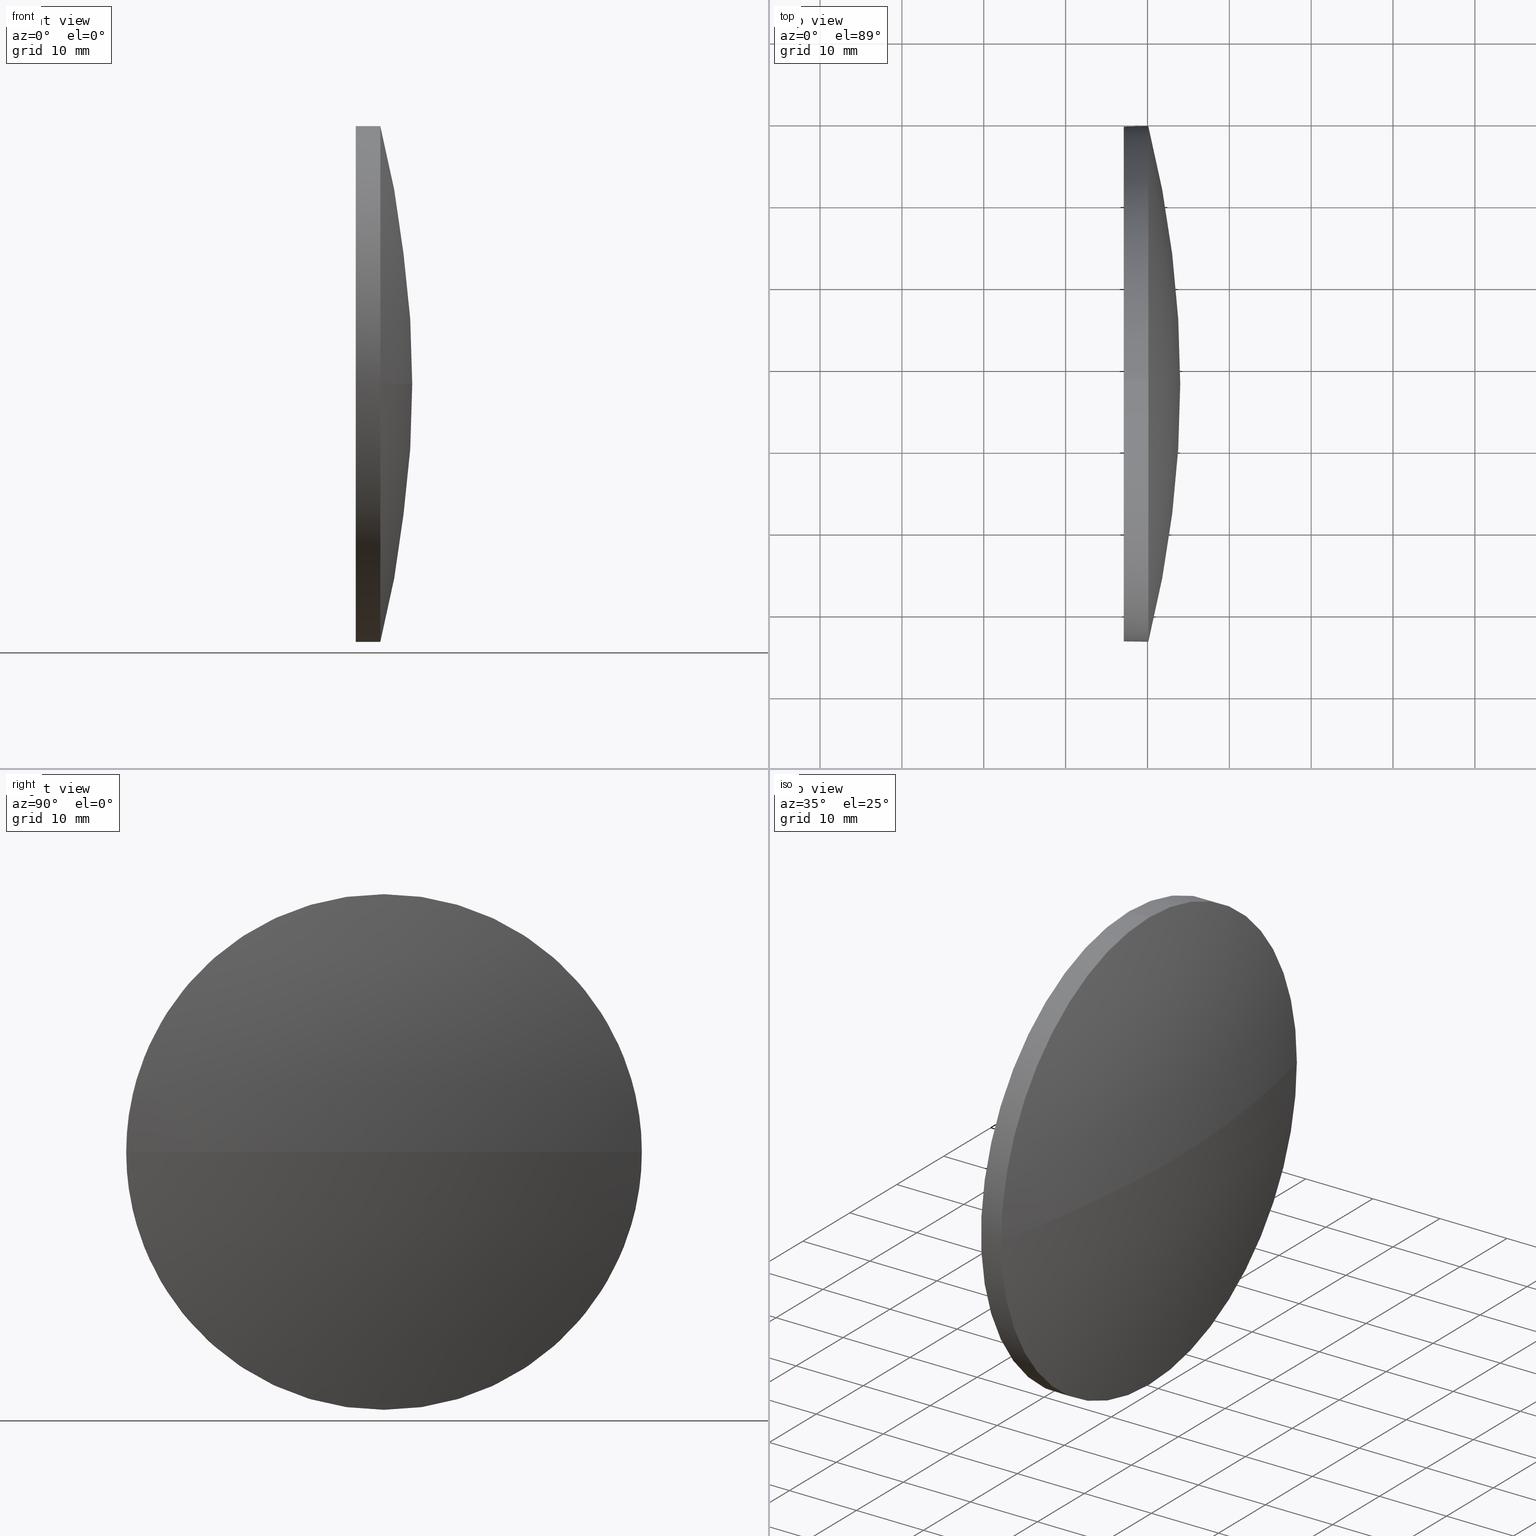
[diagram: canonical four-view strip — front | top / right | iso, engineering-drawing reading convention]
A machine part, canonical four-view strip (front | top / right | iso — engineering-drawing reading convention). The complete STEP part file that produces these views, byte-faithful:
ISO-10303-21;
HEADER;
FILE_DESCRIPTION (( 'STEP AP214' ),
    '1' );
FILE_NAME ('100247.STEP',
    '2019-05-28T09:15:32',
    ( '' ),
    ( '' ),
    'SwSTEP 2.0',
    'SolidWorks 2016',
    '' );
FILE_SCHEMA (( 'AUTOMOTIVE_DESIGN' ));
ENDSEC;

DATA;
#1 = CIRCLE ( 'NONE', #35, 129.1615384615381600 ) ;
#2 =( NAMED_UNIT ( * ) SI_UNIT ( $, .STERADIAN. ) SOLID_ANGLE_UNIT ( ) );
#3 = DIRECTION ( 'NONE',  ( -1.000000000000000000, -0.0000000000000000000, -0.0000000000000000000 ) ) ;
#4 = PRODUCT_DEFINITION ( 'δ֪', '', #44, #124 ) ;
#5 =( LENGTH_UNIT ( ) NAMED_UNIT ( * ) SI_UNIT ( .MILLI., .METRE. ) );
#6 = VERTEX_POINT ( 'NONE', #98 ) ;
#7 = AXIS2_PLACEMENT_3D ( 'NONE', #179, #108, #22 ) ;
#8 = CIRCLE ( 'NONE', #11, 31.50000000000000700 ) ;
#9 = CARTESIAN_POINT ( 'NONE',  ( 458.3320207545457400, 57.89546231009239800, 0.0000000000000000000 ) ) ;
#10 = CLOSED_SHELL ( 'NONE', ( #77, #160, #42, #175, #88 ) ) ;
#11 = AXIS2_PLACEMENT_3D ( 'NONE', #161, #90, #185 ) ;
#12 = SURFACE_STYLE_USAGE ( .BOTH. , #56 ) ;
#13 = FACE_OUTER_BOUND ( 'NONE', #181, .T. ) ;
#14 = PLANE ( 'NONE',  #45 ) ;
#15 = DIRECTION ( 'NONE',  ( 1.000000000000000000, 0.0000000000000000000, 0.0000000000000000000 ) ) ;
#16 = CARTESIAN_POINT ( 'NONE',  ( 467.1016550187782700, 57.89546231009239800, 31.50000000000000700 ) ) ;
#17 = FILL_AREA_STYLE ('',( #133 ) ) ;
#18 = CIRCLE ( 'NONE', #140, 31.50000000000000700 ) ;
#19 =( GEOMETRIC_REPRESENTATION_CONTEXT ( 3 ) GLOBAL_UNCERTAINTY_ASSIGNED_CONTEXT ( ( #119 ) ) GLOBAL_UNIT_ASSIGNED_CONTEXT ( ( #27, #104, #69 ) ) REPRESENTATION_CONTEXT ( 'NONE', 'WORKASPACE' ) );
#20 = VECTOR ( 'NONE', #186, 1000.000000000000000 ) ;
#21 = PRODUCT_CONTEXT ( 'NONE', #109, 'mechanical' ) ;
#22 = DIRECTION ( 'NONE',  ( 0.0000000000000000000, 1.000000000000000000, 1.224646799147353200E-016 ) ) ;
#23 = LINE ( 'NONE', #114, #50 ) ;
#24 = DIRECTION ( 'NONE',  ( -0.0000000000000000000, 0.0000000000000000000, -1.000000000000000000 ) ) ;
#25 = DIRECTION ( 'NONE',  ( -1.000000000000000000, -0.0000000000000000000, -0.0000000000000000000 ) ) ;
#26 = PRESENTATION_LAYER_ASSIGNMENT (  '', '', ( #184 ) ) ;
#27 =( LENGTH_UNIT ( ) NAMED_UNIT ( * ) SI_UNIT ( .MILLI., .METRE. ) );
#28 = EDGE_CURVE ( 'NONE', #6, #155, #23, .T. ) ;
#29 = FACE_OUTER_BOUND ( 'NONE', #68, .T. ) ;
#30 = AXIS2_PLACEMENT_3D ( 'NONE', #146, #157, #43 ) ;
#31 = CIRCLE ( 'NONE', #53, 31.50000000000000700 ) ;
#32 = AXIS2_PLACEMENT_3D ( 'NONE', #177, #89, #176 ) ;
#33 = CARTESIAN_POINT ( 'NONE',  ( 458.3320207545457400, 57.89546231009239800, 31.50000000000000700 ) ) ;
#34 = SURFACE_SIDE_STYLE ('',( #87 ) ) ;
#35 = AXIS2_PLACEMENT_3D ( 'NONE', #91, #92, #15 ) ;
#36 = CARTESIAN_POINT ( 'NONE',  ( 470.1016550187782700, 57.89546231009239800, 0.0000000000000000000 ) ) ;
#37 = DIRECTION ( 'NONE',  ( -1.000000000000000000, -0.0000000000000000000, -0.0000000000000000000 ) ) ;
#38 = PRODUCT_DEFINITION_SHAPE ( 'NONE', 'NONE',  #4 ) ;
#39 = FACE_OUTER_BOUND ( 'NONE', #174, .T. ) ;
#40 = AXIS2_PLACEMENT_3D ( 'NONE', #152, #3, #138 ) ;
#41 = DIRECTION ( 'NONE',  ( 0.0000000000000000000, 0.0000000000000000000, 1.000000000000000000 ) ) ;
#42 = ADVANCED_FACE ( 'NONE', ( #125 ), #70, .T. ) ;
#43 = DIRECTION ( 'NONE',  ( 0.0000000000000000000, 0.0000000000000000000, 1.000000000000000000 ) ) ;
#44 = PRODUCT_DEFINITION_FORMATION_WITH_SPECIFIED_SOURCE ( '�κ�', '', #122, .NOT_KNOWN. ) ;
#45 = AXIS2_PLACEMENT_3D ( 'NONE', #131, #62, #165 ) ;
#46 =( LENGTH_UNIT ( ) NAMED_UNIT ( * ) SI_UNIT ( .MILLI., .METRE. ) );
#47 = CARTESIAN_POINT ( 'NONE',  ( 0.0000000000000000000, 0.0000000000000000000, 0.0000000000000000000 ) ) ;
#48 = APPLICATION_CONTEXT ( 'automotive_design' ) ;
#49 = PRESENTATION_STYLE_ASSIGNMENT (( #136 ) ) ;
#50 = VECTOR ( 'NONE', #25, 1000.000000000000000 ) ;
#51 = DIRECTION ( 'NONE',  ( -1.000000000000000000, -0.0000000000000000000, -0.0000000000000000000 ) ) ;
#52 = ORIENTED_EDGE ( 'NONE', *, *, #28, .T. ) ;
#53 = AXIS2_PLACEMENT_3D ( 'NONE', #61, #163, #60 ) ;
#54 = PRODUCT_RELATED_PRODUCT_CATEGORY ( 'part', '', ( #122 ) ) ;
#55 = EDGE_CURVE ( 'NONE', #139, #6, #172, .T. ) ;
#56 = SURFACE_SIDE_STYLE ('',( #63 ) ) ;
#57 = DIRECTION ( 'NONE',  ( -1.000000000000000000, -0.0000000000000000000, -0.0000000000000000000 ) ) ;
#58 = LINE ( 'NONE', #33, #20 ) ;
#59 = MECHANICAL_DESIGN_GEOMETRIC_PRESENTATION_REPRESENTATION (  '', ( #184 ), #19 ) ;
#60 = DIRECTION ( 'NONE',  ( 0.0000000000000000000, 0.0000000000000000000, 1.000000000000000000 ) ) ;
#61 = CARTESIAN_POINT ( 'NONE',  ( 470.1016550187782700, 57.89546231009239800, 0.0000000000000000000 ) ) ;
#62 = DIRECTION ( 'NONE',  ( 1.000000000000000000, 0.0000000000000000000, 0.0000000000000000000 ) ) ;
#63 = SURFACE_STYLE_FILL_AREA ( #100 ) ;
#64 = CIRCLE ( 'NONE', #7, 129.1615384615381600 ) ;
#65 = EDGE_CURVE ( 'NONE', #110, #139, #18, .T. ) ;
#66 = ORIENTED_EDGE ( 'NONE', *, *, #55, .F. ) ;
#67 = ORIENTED_EDGE ( 'NONE', *, *, #156, .F. ) ;
#68 = EDGE_LOOP ( 'NONE', ( #180, #52, #105, #67, #137 ) ) ;
#69 =( NAMED_UNIT ( * ) SI_UNIT ( $, .STERADIAN. ) SOLID_ANGLE_UNIT ( ) );
#70 = SPHERICAL_SURFACE ( 'NONE', #75, 129.1615384615381600 ) ;
#71 = CARTESIAN_POINT ( 'NONE',  ( 474.0016550187782500, 57.89546231009235600, 0.0000000000000000000 ) ) ;
#72 = ORIENTED_EDGE ( 'NONE', *, *, #85, .F. ) ;
#73 = CARTESIAN_POINT ( 'NONE',  ( 470.1016550187782700, 89.39546231009238400, 0.0000000000000000000 ) ) ;
#74 = CARTESIAN_POINT ( 'NONE',  ( 470.1016550187782700, 57.89546231009239800, 31.50000000000000700 ) ) ;
#75 = AXIS2_PLACEMENT_3D ( 'NONE', #129, #24, #130 ) ;
#76 = EDGE_LOOP ( 'NONE', ( #93, #115 ) ) ;
#77 = ADVANCED_FACE ( 'NONE', ( #29 ), #145, .T. ) ;
#78 = STYLED_ITEM ( 'NONE', ( #49 ), #83 ) ;
#79 = ORIENTED_EDGE ( 'NONE', *, *, #28, .F. ) ;
#80 = MANIFOLD_SOLID_BREP ( '��ת1', #10 ) ;
#81 = CIRCLE ( 'NONE', #30, 31.50000000000000700 ) ;
#82 = APPLICATION_PROTOCOL_DEFINITION ( 'draft international standard', 'automotive_design', 1998, #48 ) ;
#83 = ADVANCED_BREP_SHAPE_REPRESENTATION ( '100247', ( #80, #84 ), #134 ) ;
#84 = AXIS2_PLACEMENT_3D ( 'NONE', #47, #153, #168 ) ;
#85 = EDGE_CURVE ( 'NONE', #155, #162, #81, .T. ) ;
#86 = VERTEX_POINT ( 'NONE', #102 ) ;
#87 = SURFACE_STYLE_FILL_AREA ( #17 ) ;
#88 = ADVANCED_FACE ( 'NONE', ( #116 ), #14, .F. ) ;
#89 = DIRECTION ( 'NONE',  ( -0.0000000000000000000, 0.0000000000000000000, -1.000000000000000000 ) ) ;
#90 = DIRECTION ( 'NONE',  ( -1.000000000000000000, -0.0000000000000000000, -0.0000000000000000000 ) ) ;
#91 = CARTESIAN_POINT ( 'NONE',  ( 344.8401165572400900, 57.89546231009234800, 0.0000000000000000000 ) ) ;
#92 = DIRECTION ( 'NONE',  ( -0.0000000000000000000, 0.0000000000000000000, 1.000000000000000000 ) ) ;
#93 = ORIENTED_EDGE ( 'NONE', *, *, #144, .T. ) ;
#94 = PRESENTATION_STYLE_ASSIGNMENT (( #12 ) ) ;
#95 = DIRECTION ( 'NONE',  ( -1.000000000000000000, -0.0000000000000000000, -0.0000000000000000000 ) ) ;
#96 = ORIENTED_EDGE ( 'NONE', *, *, #164, .T. ) ;
#97 = SPHERICAL_SURFACE ( 'NONE', #32, 129.1615384615381600 ) ;
#98 = CARTESIAN_POINT ( 'NONE',  ( 470.1016550187782700, 57.89546231009240500, -31.50000000000000700 ) ) ;
#99 = FILL_AREA_STYLE_COLOUR ( '', #101 ) ;
#100 = FILL_AREA_STYLE ('',( #99 ) ) ;
#101 = COLOUR_RGB ( '',1.000000000000000000, 1.000000000000000000, 1.000000000000000000 ) ;
#102 = CARTESIAN_POINT ( 'NONE',  ( 470.1016550187782700, 26.39546231009237000, -3.857637417314160300E-015 ) ) ;
#103 = CIRCLE ( 'NONE', #127, 31.50000000000000700 ) ;
#104 =( NAMED_UNIT ( * ) PLANE_ANGLE_UNIT ( ) SI_UNIT ( $, .RADIAN. ) );
#105 = ORIENTED_EDGE ( 'NONE', *, *, #144, .F. ) ;
#106 = VERTEX_POINT ( 'NONE', #71 ) ;
#107 = APPLICATION_PROTOCOL_DEFINITION ( 'draft international standard', 'automotive_design', 1998, #109 ) ;
#108 = DIRECTION ( 'NONE',  ( 0.0000000000000000000, 1.224646799147353200E-016, -1.000000000000000000 ) ) ;
#109 = APPLICATION_CONTEXT ( 'automotive_design' ) ;
#110 = VERTEX_POINT ( 'NONE', #74 ) ;
#111 =( NAMED_UNIT ( * ) SI_UNIT ( $, .STERADIAN. ) SOLID_ANGLE_UNIT ( ) );
#112 =( GEOMETRIC_REPRESENTATION_CONTEXT ( 3 ) GLOBAL_UNCERTAINTY_ASSIGNED_CONTEXT ( ( #117 ) ) GLOBAL_UNIT_ASSIGNED_CONTEXT ( ( #46, #150, #2 ) ) REPRESENTATION_CONTEXT ( 'NONE', 'WORKASPACE' ) );
#113 = ORIENTED_EDGE ( 'NONE', *, *, #154, .T. ) ;
#114 = CARTESIAN_POINT ( 'NONE',  ( 458.3320207545457400, 57.89546231009240500, -31.50000000000000700 ) ) ;
#115 = ORIENTED_EDGE ( 'NONE', *, *, #85, .T. ) ;
#116 = FACE_OUTER_BOUND ( 'NONE', #76, .T. ) ;
#117 = UNCERTAINTY_MEASURE_WITH_UNIT (LENGTH_MEASURE( 1.000000000000000100E-005 ), #46, 'distance_accuracy_value', 'NONE');
#118 = CARTESIAN_POINT ( 'NONE',  ( 470.1016550187782700, 57.89546231009239800, 0.0000000000000000000 ) ) ;
#119 = UNCERTAINTY_MEASURE_WITH_UNIT (LENGTH_MEASURE( 1.000000000000000100E-005 ), #27, 'distance_accuracy_value', 'NONE');
#120 = ORIENTED_EDGE ( 'NONE', *, *, #173, .F. ) ;
#121 =( NAMED_UNIT ( * ) PLANE_ANGLE_UNIT ( ) SI_UNIT ( $, .RADIAN. ) );
#122 = PRODUCT ( '100247', '100247', '', ( #21 ) ) ;
#123 = ORIENTED_EDGE ( 'NONE', *, *, #154, .F. ) ;
#124 = PRODUCT_DEFINITION_CONTEXT ( 'detailed design', #48, 'design' ) ;
#125 = FACE_OUTER_BOUND ( 'NONE', #178, .T. ) ;
#126 = COLOUR_RGB ( '',1.000000000000000000, 1.000000000000000000, 1.000000000000000000 ) ;
#127 = AXIS2_PLACEMENT_3D ( 'NONE', #159, #95, #166 ) ;
#128 = DIRECTION ( 'NONE',  ( 0.0000000000000000000, 0.0000000000000000000, 1.000000000000000000 ) ) ;
#129 = CARTESIAN_POINT ( 'NONE',  ( 344.8401165572400900, 57.89546231009234800, 0.0000000000000000000 ) ) ;
#130 = DIRECTION ( 'NONE',  ( 0.0000000000000000000, 1.000000000000000000, 0.0000000000000000000 ) ) ;
#131 = CARTESIAN_POINT ( 'NONE',  ( 467.1016550187782700, 57.89546231009239800, 0.0000000000000000000 ) ) ;
#132 = CARTESIAN_POINT ( 'NONE',  ( 467.1016550187782700, 57.89546231009240500, -31.50000000000000700 ) ) ;
#133 = FILL_AREA_STYLE_COLOUR ( '', #126 ) ;
#134 =( GEOMETRIC_REPRESENTATION_CONTEXT ( 3 ) GLOBAL_UNCERTAINTY_ASSIGNED_CONTEXT ( ( #170 ) ) GLOBAL_UNIT_ASSIGNED_CONTEXT ( ( #5, #121, #111 ) ) REPRESENTATION_CONTEXT ( 'NONE', 'WORKASPACE' ) );
#135 = EDGE_CURVE ( 'NONE', #6, #86, #31, .T. ) ;
#136 = SURFACE_STYLE_USAGE ( .BOTH. , #34 ) ;
#137 = ORIENTED_EDGE ( 'NONE', *, *, #65, .T. ) ;
#138 = DIRECTION ( 'NONE',  ( 0.0000000000000000000, 0.0000000000000000000, 1.000000000000000000 ) ) ;
#139 = VERTEX_POINT ( 'NONE', #73 ) ;
#140 = AXIS2_PLACEMENT_3D ( 'NONE', #118, #57, #41 ) ;
#141 = ORIENTED_EDGE ( 'NONE', *, *, #173, .T. ) ;
#142 = SHAPE_DEFINITION_REPRESENTATION ( #38, #83 ) ;
#143 = ORIENTED_EDGE ( 'NONE', *, *, #135, .F. ) ;
#144 = EDGE_CURVE ( 'NONE', #162, #155, #8, .T. ) ;
#145 = CYLINDRICAL_SURFACE ( 'NONE', #149, 31.50000000000000700 ) ;
#146 = CARTESIAN_POINT ( 'NONE',  ( 467.1016550187782700, 57.89546231009239800, 0.0000000000000000000 ) ) ;
#147 = MECHANICAL_DESIGN_GEOMETRIC_PRESENTATION_REPRESENTATION (  '', ( #78 ), #112 ) ;
#148 = ORIENTED_EDGE ( 'NONE', *, *, #156, .T. ) ;
#149 = AXIS2_PLACEMENT_3D ( 'NONE', #9, #37, #128 ) ;
#150 =( NAMED_UNIT ( * ) PLANE_ANGLE_UNIT ( ) SI_UNIT ( $, .RADIAN. ) );
#151 = ORIENTED_EDGE ( 'NONE', *, *, #65, .F. ) ;
#152 = CARTESIAN_POINT ( 'NONE',  ( 458.3320207545457400, 57.89546231009239800, 0.0000000000000000000 ) ) ;
#153 = DIRECTION ( 'NONE',  ( 0.0000000000000000000, 0.0000000000000000000, 1.000000000000000000 ) ) ;
#154 = EDGE_CURVE ( 'NONE', #106, #139, #1, .T. ) ;
#155 = VERTEX_POINT ( 'NONE', #132 ) ;
#156 = EDGE_CURVE ( 'NONE', #110, #162, #58, .T. ) ;
#157 = DIRECTION ( 'NONE',  ( -1.000000000000000000, -0.0000000000000000000, -0.0000000000000000000 ) ) ;
#158 = ORIENTED_EDGE ( 'NONE', *, *, #135, .T. ) ;
#159 = CARTESIAN_POINT ( 'NONE',  ( 470.1016550187782700, 57.89546231009239800, 0.0000000000000000000 ) ) ;
#160 = ADVANCED_FACE ( 'NONE', ( #39 ), #97, .T. ) ;
#161 = CARTESIAN_POINT ( 'NONE',  ( 467.1016550187782700, 57.89546231009239800, 0.0000000000000000000 ) ) ;
#162 = VERTEX_POINT ( 'NONE', #16 ) ;
#163 = DIRECTION ( 'NONE',  ( -1.000000000000000000, -0.0000000000000000000, -0.0000000000000000000 ) ) ;
#164 = EDGE_CURVE ( 'NONE', #86, #110, #103, .T. ) ;
#165 = DIRECTION ( 'NONE',  ( 0.0000000000000000000, 0.0000000000000000000, -1.000000000000000000 ) ) ;
#166 = DIRECTION ( 'NONE',  ( 0.0000000000000000000, 0.0000000000000000000, 1.000000000000000000 ) ) ;
#167 = ORIENTED_EDGE ( 'NONE', *, *, #164, .F. ) ;
#168 = DIRECTION ( 'NONE',  ( 1.000000000000000000, 0.0000000000000000000, 0.0000000000000000000 ) ) ;
#169 = PRESENTATION_LAYER_ASSIGNMENT (  '', '', ( #78 ) ) ;
#170 = UNCERTAINTY_MEASURE_WITH_UNIT (LENGTH_MEASURE( 1.000000000000000100E-005 ), #5, 'distance_accuracy_value', 'NONE');
#171 = DIRECTION ( 'NONE',  ( 0.0000000000000000000, 0.0000000000000000000, 1.000000000000000000 ) ) ;
#172 = CIRCLE ( 'NONE', #183, 31.50000000000000700 ) ;
#173 = EDGE_CURVE ( 'NONE', #106, #86, #64, .T. ) ;
#174 = EDGE_LOOP ( 'NONE', ( #123, #141, #143, #66 ) ) ;
#175 = ADVANCED_FACE ( 'NONE', ( #13 ), #182, .T. ) ;
#176 = DIRECTION ( 'NONE',  ( 0.0000000000000000000, 1.000000000000000000, 0.0000000000000000000 ) ) ;
#177 = CARTESIAN_POINT ( 'NONE',  ( 344.8401165572400900, 57.89546231009234800, 0.0000000000000000000 ) ) ;
#178 = EDGE_LOOP ( 'NONE', ( #120, #113, #151, #167 ) ) ;
#179 = CARTESIAN_POINT ( 'NONE',  ( 344.8401165572400900, 57.89546231009234800, 0.0000000000000000000 ) ) ;
#180 = ORIENTED_EDGE ( 'NONE', *, *, #55, .T. ) ;
#181 = EDGE_LOOP ( 'NONE', ( #79, #158, #96, #148, #72 ) ) ;
#182 = CYLINDRICAL_SURFACE ( 'NONE', #40, 31.50000000000000700 ) ;
#183 = AXIS2_PLACEMENT_3D ( 'NONE', #36, #51, #171 ) ;
#184 = STYLED_ITEM ( 'NONE', ( #94 ), #80 ) ;
#185 = DIRECTION ( 'NONE',  ( 0.0000000000000000000, 0.0000000000000000000, 1.000000000000000000 ) ) ;
#186 = DIRECTION ( 'NONE',  ( -1.000000000000000000, -0.0000000000000000000, -0.0000000000000000000 ) ) ;
ENDSEC;
END-ISO-10303-21;
